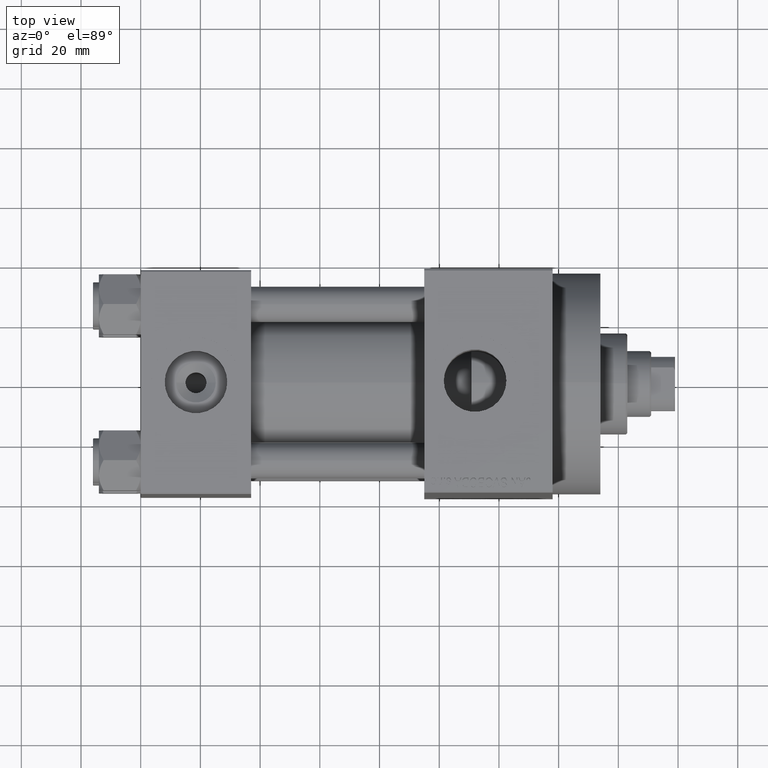
[diagram: clean part render]
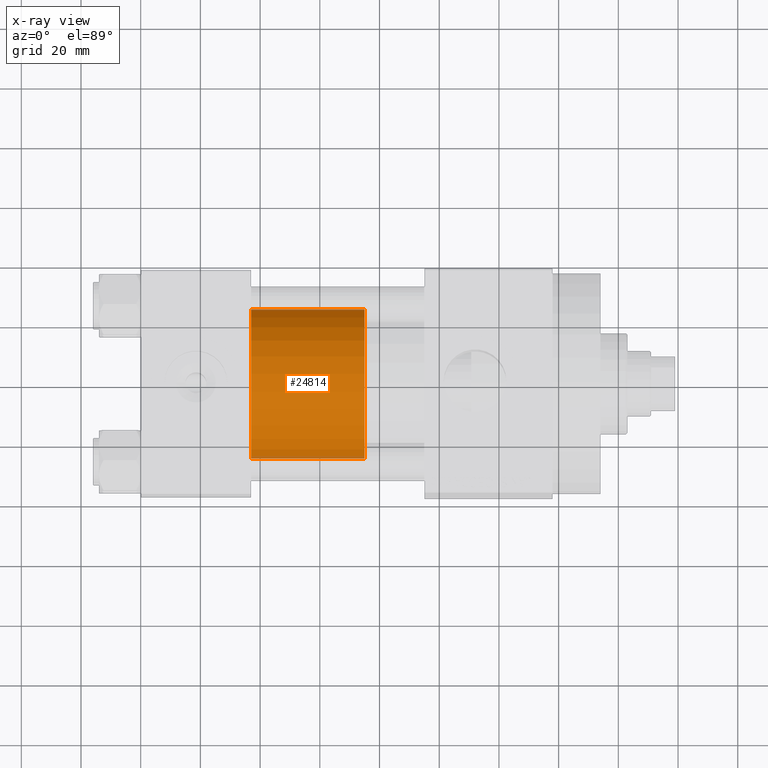
[diagram: x-ray — body ghosted, one internal face saturated and labeled with its STEP entity id]
A machine part, top view, then the same camera in x-ray: the body is ghosted and one INTERNAL B-rep face — a face not visible from any outside direction — is saturated and labeled: STEP entity #24814.
In plain terms, the highlighted cylindrical surface (partial cylindrical patch) has radius 25 mm, axis along (-1, 0, 0).
Its self-contained STEP definition (entity closure, byte-faithful):
#436 = EDGE_LOOP ( 'NONE', ( #36269, #22251, #16940, #27432 ) ) ;
#3696 = CARTESIAN_POINT ( 'NONE',  ( 0.000000000000000000, 0.000000000000000000, 38.00000000000000000 ) ) ;
#3725 = LINE ( 'NONE', #11851, #25040 ) ;
#4213 = AXIS2_PLACEMENT_3D ( 'NONE', #19135, #11246, #21992 ) ;
#9892 = CARTESIAN_POINT ( 'NONE',  ( -25.00000000000000000, 0.000000000000000000, 0.000000000000000000 ) ) ;
#10558 = CARTESIAN_POINT ( 'NONE',  ( 25.00000000000000000, 3.061616997868383043E-15, 38.00000000000000000 ) ) ;
#11246 = DIRECTION ( 'NONE',  ( 0.000000000000000000, 0.000000000000000000, 1.000000000000000000 ) ) ;
#11851 = CARTESIAN_POINT ( 'NONE',  ( -25.00000000000000000, 0.000000000000000000, 38.00000000000000000 ) ) ;
#11924 = AXIS2_PLACEMENT_3D ( 'NONE', #3696, #12059, #26379 ) ;
#12059 = DIRECTION ( 'NONE',  ( -0.000000000000000000, -0.000000000000000000, -1.000000000000000000 ) ) ;
#12360 = CARTESIAN_POINT ( 'NONE',  ( 25.00000000000000000, 3.061616997868383043E-15, 0.000000000000000000 ) ) ;
#12673 = LINE ( 'NONE', #31268, #26324 ) ;
#13337 = CARTESIAN_POINT ( 'NONE',  ( 0.000000000000000000, 0.000000000000000000, 0.000000000000000000 ) ) ;
#16940 = ORIENTED_EDGE ( 'NONE', *, *, #42669, .T. ) ;
#18391 = EDGE_CURVE ( 'NONE', #39794, #26067, #31632, .T. ) ;
#18588 = EDGE_CURVE ( 'NONE', #26067, #45876, #12673, .T. ) ;
#19135 = CARTESIAN_POINT ( 'NONE',  ( 0.000000000000000000, 0.000000000000000000, 38.00000000000000000 ) ) ;
#19392 = VERTEX_POINT ( 'NONE', #9892 ) ;
#19497 = CARTESIAN_POINT ( 'NONE',  ( -25.00000000000000000, 0.000000000000000000, 38.00000000000000000 ) ) ;
#21992 = DIRECTION ( 'NONE',  ( 1.000000000000000000, 0.000000000000000000, 0.000000000000000000 ) ) ;
#22251 = ORIENTED_EDGE ( 'NONE', *, *, #18391, .F. ) ;
#24814 = ADVANCED_FACE ( 'NONE', ( #37353 ), #40700, .T. ) ;
#25040 = VECTOR ( 'NONE', #33328, 1000.000000000000000 ) ;
#26067 = VERTEX_POINT ( 'NONE', #10558 ) ;
#26324 = VECTOR ( 'NONE', #42259, 1000.000000000000000 ) ;
#26379 = DIRECTION ( 'NONE',  ( -1.000000000000000000, 0.000000000000000000, 0.000000000000000000 ) ) ;
#27432 = ORIENTED_EDGE ( 'NONE', *, *, #28245, .T. ) ;
#27901 = DIRECTION ( 'NONE',  ( 0.000000000000000000, 0.000000000000000000, 1.000000000000000000 ) ) ;
#28245 = EDGE_CURVE ( 'NONE', #19392, #45876, #46086, .T. ) ;
#31268 = CARTESIAN_POINT ( 'NONE',  ( 25.00000000000000000, 3.061616997868383043E-15, 38.00000000000000000 ) ) ;
#31632 = CIRCLE ( 'NONE', #4213, 25.00000000000000000 ) ;
#33092 = AXIS2_PLACEMENT_3D ( 'NONE', #13337, #27901, #42470 ) ;
#33328 = DIRECTION ( 'NONE',  ( -0.000000000000000000, -0.000000000000000000, -1.000000000000000000 ) ) ;
#36269 = ORIENTED_EDGE ( 'NONE', *, *, #18588, .F. ) ;
#37353 = FACE_OUTER_BOUND ( 'NONE', #436, .T. ) ;
#39794 = VERTEX_POINT ( 'NONE', #19497 ) ;
#40700 = CYLINDRICAL_SURFACE ( 'NONE', #11924, 25.00000000000000000 ) ;
#42259 = DIRECTION ( 'NONE',  ( -0.000000000000000000, -0.000000000000000000, -1.000000000000000000 ) ) ;
#42470 = DIRECTION ( 'NONE',  ( 1.000000000000000000, 0.000000000000000000, 0.000000000000000000 ) ) ;
#42669 = EDGE_CURVE ( 'NONE', #39794, #19392, #3725, .T. ) ;
#45876 = VERTEX_POINT ( 'NONE', #12360 ) ;
#46086 = CIRCLE ( 'NONE', #33092, 25.00000000000000000 ) ;